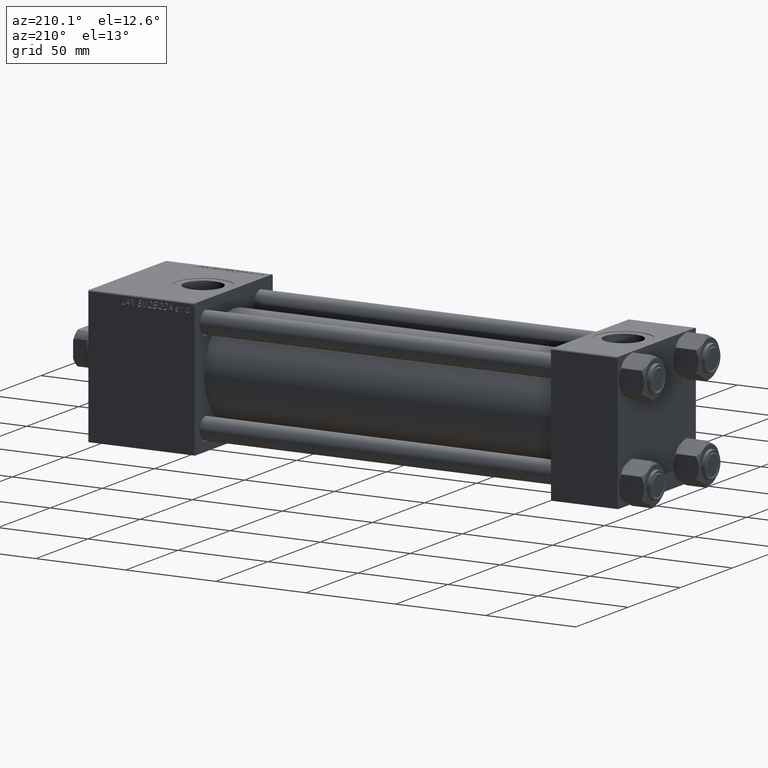
[diagram: clean part render]
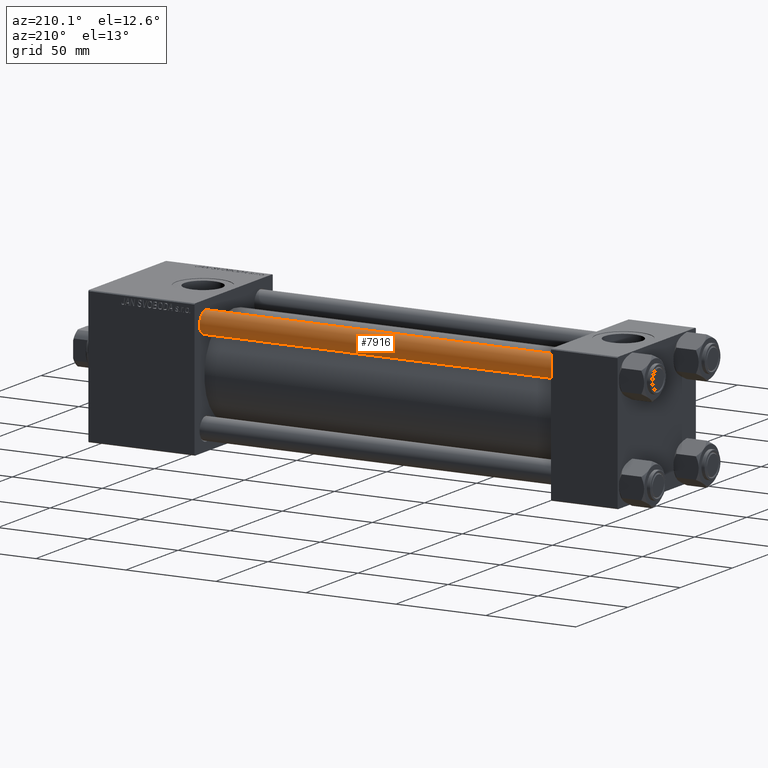
[diagram: same view with one face highlighted and labeled with its STEP entity id]
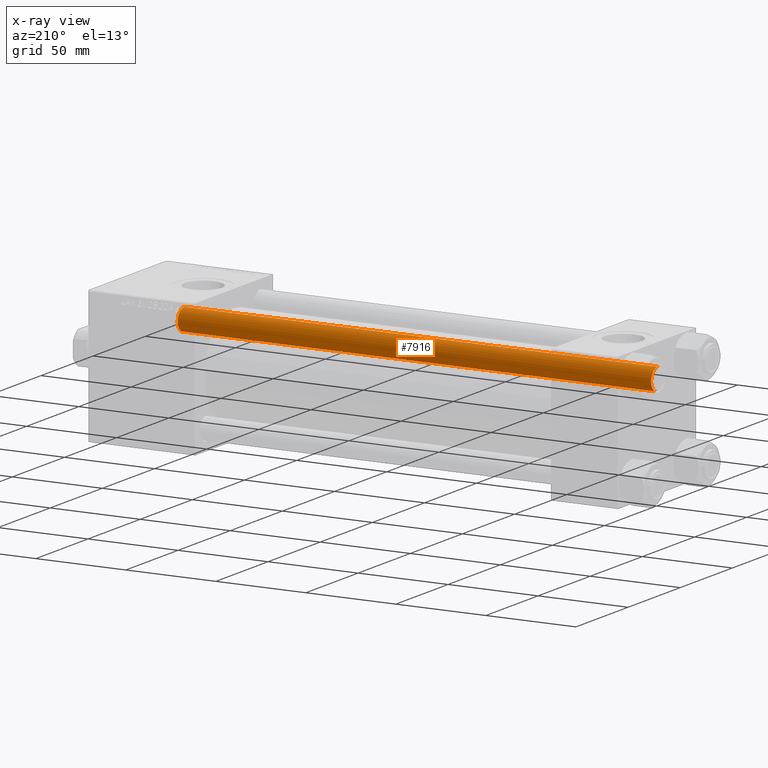
[diagram: x-ray of the same camera — body ghosted, the highlighted face saturated]
A machine part, auxiliary view. The second image highlights one B-rep face of the part: STEP entity #7916.
The next image is the same camera in x-ray: the body ghosted, the highlighted face saturated — about 0% of this face is hidden behind the body in this view.
In plain terms, the highlighted cylindrical surface (edge-blend (fillet) strip) has radius 6 mm, axis along (-1, 0, 0).
Its self-contained STEP definition (entity closure, byte-faithful):
#2378 = CARTESIAN_POINT ( 'NONE',  ( 0.000000000000000000, 0.000000000000000000, 263.5000000000000568 ) ) ;
#5243 = EDGE_CURVE ( 'NONE', #10042, #24305, #42165, .T. ) ;
#5332 = CARTESIAN_POINT ( 'NONE',  ( 6.000000000000000888, 7.347880794884120722E-16, 263.5000000000000568 ) ) ;
#6053 = CARTESIAN_POINT ( 'NONE',  ( 6.000000000000000888, 7.347880794884120722E-16, 264.0000000000000000 ) ) ;
#7080 = CARTESIAN_POINT ( 'NONE',  ( -6.000000000000000888, 0.000000000000000000, 263.5000000000000568 ) ) ;
#7465 = DIRECTION ( 'NONE',  ( 1.000000000000000000, 0.000000000000000000, 0.000000000000000000 ) ) ;
#7916 = ADVANCED_FACE ( 'NONE', ( #40121 ), #20292, .T. ) ;
#8838 = AXIS2_PLACEMENT_3D ( 'NONE', #2378, #37533, #49220 ) ;
#10042 = VERTEX_POINT ( 'NONE', #7080 ) ;
#10570 = ORIENTED_EDGE ( 'NONE', *, *, #13725, .F. ) ;
#10764 = ORIENTED_EDGE ( 'NONE', *, *, #5243, .T. ) ;
#12642 = DIRECTION ( 'NONE',  ( -1.000000000000000000, 0.000000000000000000, 0.000000000000000000 ) ) ;
#13725 = EDGE_CURVE ( 'NONE', #10042, #19605, #21935, .T. ) ;
#13773 = CARTESIAN_POINT ( 'NONE',  ( 6.000000000000000888, 7.347880794884120722E-16, 0.5000000000000559552 ) ) ;
#14724 = DIRECTION ( 'NONE',  ( -0.000000000000000000, -0.000000000000000000, -1.000000000000000000 ) ) ;
#16844 = ORIENTED_EDGE ( 'NONE', *, *, #46823, .T. ) ;
#16854 = VECTOR ( 'NONE', #14724, 1000.000000000000000 ) ;
#18548 = LINE ( 'NONE', #6053, #16854 ) ;
#19605 = VERTEX_POINT ( 'NONE', #38950 ) ;
#20292 = CYLINDRICAL_SURFACE ( 'NONE', #40659, 6.000000000000000888 ) ;
#21421 = CARTESIAN_POINT ( 'NONE',  ( -6.000000000000000888, 0.000000000000000000, 264.0000000000000000 ) ) ;
#21935 = LINE ( 'NONE', #21421, #41652 ) ;
#23260 = DIRECTION ( 'NONE',  ( -0.000000000000000000, -0.000000000000000000, 1.000000000000000000 ) ) ;
#23527 = VERTEX_POINT ( 'NONE', #13773 ) ;
#24305 = VERTEX_POINT ( 'NONE', #5332 ) ;
#25136 = EDGE_LOOP ( 'NONE', ( #10764, #16844, #48180, #10570 ) ) ;
#31744 = CARTESIAN_POINT ( 'NONE',  ( 0.000000000000000000, 0.000000000000000000, 264.0000000000000000 ) ) ;
#36403 = CIRCLE ( 'NONE', #42107, 6.000000000000000888 ) ;
#36955 = DIRECTION ( 'NONE',  ( -0.000000000000000000, -0.000000000000000000, -1.000000000000000000 ) ) ;
#37533 = DIRECTION ( 'NONE',  ( 0.000000000000000000, 0.000000000000000000, -1.000000000000000000 ) ) ;
#38950 = CARTESIAN_POINT ( 'NONE',  ( -6.000000000000000888, 0.000000000000000000, 0.5000000000000559552 ) ) ;
#39121 = DIRECTION ( 'NONE',  ( -0.000000000000000000, -0.000000000000000000, -1.000000000000000000 ) ) ;
#40121 = FACE_OUTER_BOUND ( 'NONE', #25136, .T. ) ;
#40659 = AXIS2_PLACEMENT_3D ( 'NONE', #31744, #39121, #12642 ) ;
#41652 = VECTOR ( 'NONE', #36955, 1000.000000000000000 ) ;
#42107 = AXIS2_PLACEMENT_3D ( 'NONE', #42352, #23260, #7465 ) ;
#42165 = CIRCLE ( 'NONE', #8838, 6.000000000000000888 ) ;
#42352 = CARTESIAN_POINT ( 'NONE',  ( 0.000000000000000000, 0.000000000000000000, 0.5000000000000559552 ) ) ;
#43676 = EDGE_CURVE ( 'NONE', #23527, #19605, #36403, .T. ) ;
#46823 = EDGE_CURVE ( 'NONE', #24305, #23527, #18548, .T. ) ;
#48180 = ORIENTED_EDGE ( 'NONE', *, *, #43676, .T. ) ;
#49220 = DIRECTION ( 'NONE',  ( 1.000000000000000000, 0.000000000000000000, 0.000000000000000000 ) ) ;